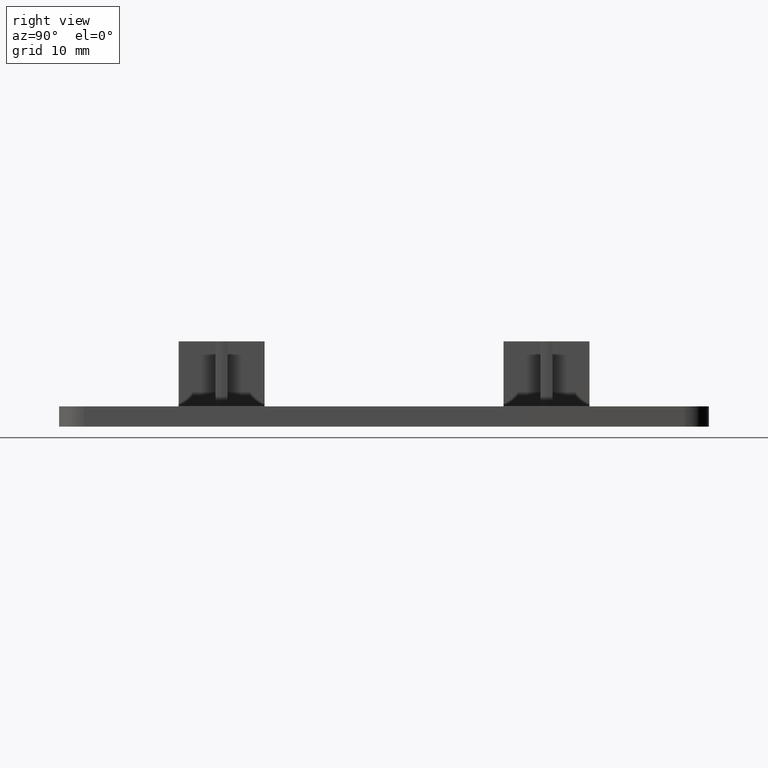
[diagram: clean part render]
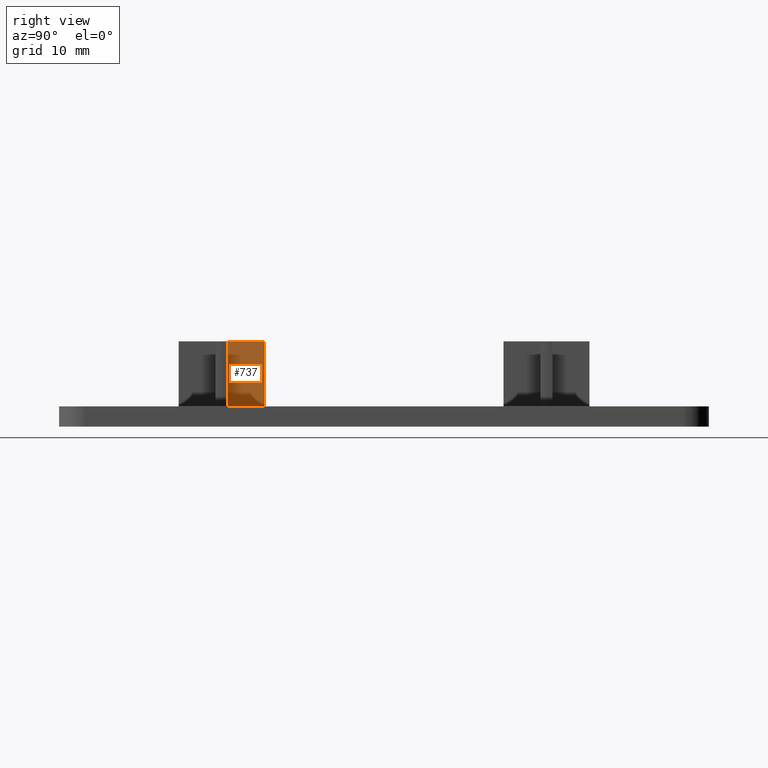
[diagram: same view with one face highlighted and labeled with its STEP entity id]
A machine part, right view. The second image highlights one B-rep face of the part: STEP entity #737.
In plain terms, the highlighted planar face has unit normal (1, 0, 0).
Its self-contained STEP definition (entity closure, byte-faithful):
#103=FACE_OUTER_BOUND('',#139,.T.);
#139=EDGE_LOOP('',(#530,#531,#532,#533));
#180=LINE('',#1102,#272);
#182=LINE('',#1106,#274);
#183=LINE('',#1108,#275);
#184=LINE('',#1109,#276);
#272=VECTOR('',#862,8.);
#274=VECTOR('',#866,4.49666560779318);
#275=VECTOR('',#867,8.);
#276=VECTOR('',#868,4.49666560779318);
#364=VERTEX_POINT('',#1099);
#365=VERTEX_POINT('',#1101);
#366=VERTEX_POINT('',#1105);
#367=VERTEX_POINT('',#1107);
#430=EDGE_CURVE('',#364,#365,#180,.T.);
#432=EDGE_CURVE('',#366,#364,#182,.T.);
#433=EDGE_CURVE('',#366,#367,#183,.T.);
#434=EDGE_CURVE('',#365,#367,#184,.T.);
#530=ORIENTED_EDGE('',*,*,#432,.F.);
#531=ORIENTED_EDGE('',*,*,#433,.T.);
#532=ORIENTED_EDGE('',*,*,#434,.F.);
#533=ORIENTED_EDGE('',*,*,#430,.F.);
#712=PLANE('',#777);
#737=ADVANCED_FACE('',(#103),#712,.T.);
#777=AXIS2_PLACEMENT_3D('',#1104,#864,#865);
#862=DIRECTION('',(0.,0.,1.));
#864=DIRECTION('center_axis',(1.,9.87596696272925E-16,0.));
#865=DIRECTION('ref_axis',(-9.88098491916389E-16,1.,0.));
#866=DIRECTION('',(9.87596696272925E-16,-1.,0.));
#867=DIRECTION('',(0.,0.,1.));
#868=DIRECTION('',(-9.87596696272925E-16,1.,0.));
#1099=CARTESIAN_POINT('',(0.749999999999997,0.749999999999997,2.5));
#1101=CARTESIAN_POINT('',(0.749999999999997,0.749999999999997,10.5));
#1102=CARTESIAN_POINT('',(0.749999999999997,0.749999999999997,0.));
#1104=CARTESIAN_POINT('Origin',(0.749999999999997,0.749999999999997,0.));
#1105=CARTESIAN_POINT('',(0.749999999999993,5.24666560779318,2.5));
#1106=CARTESIAN_POINT('',(0.749999999999988,10.375,2.5));
#1107=CARTESIAN_POINT('',(0.749999999999993,5.24666560779318,10.5));
#1108=CARTESIAN_POINT('',(0.749999999999993,5.24666560779318,0.));
#1109=CARTESIAN_POINT('',(0.749999999999997,0.749999999999997,10.5));